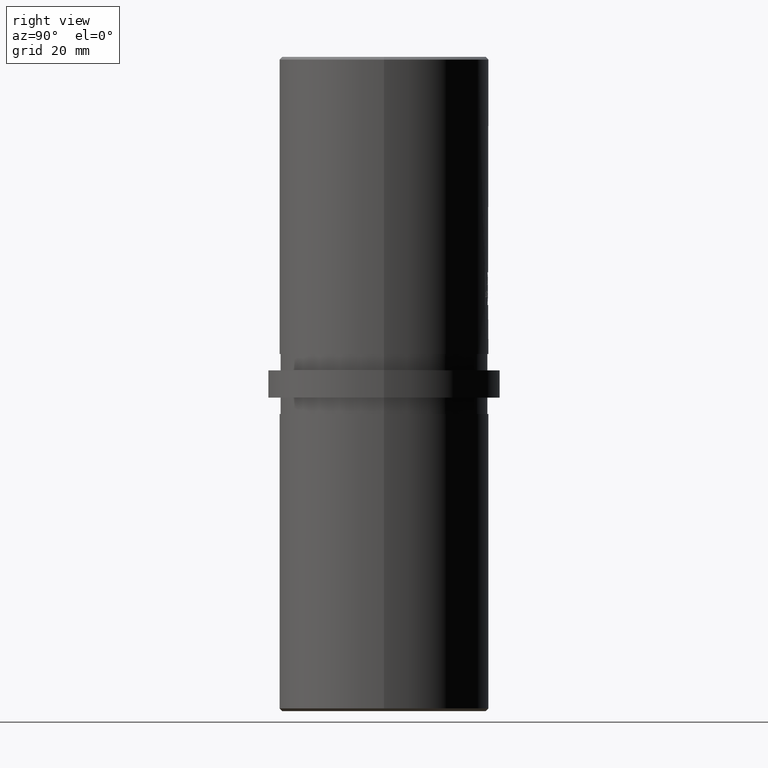
[diagram: clean part render]
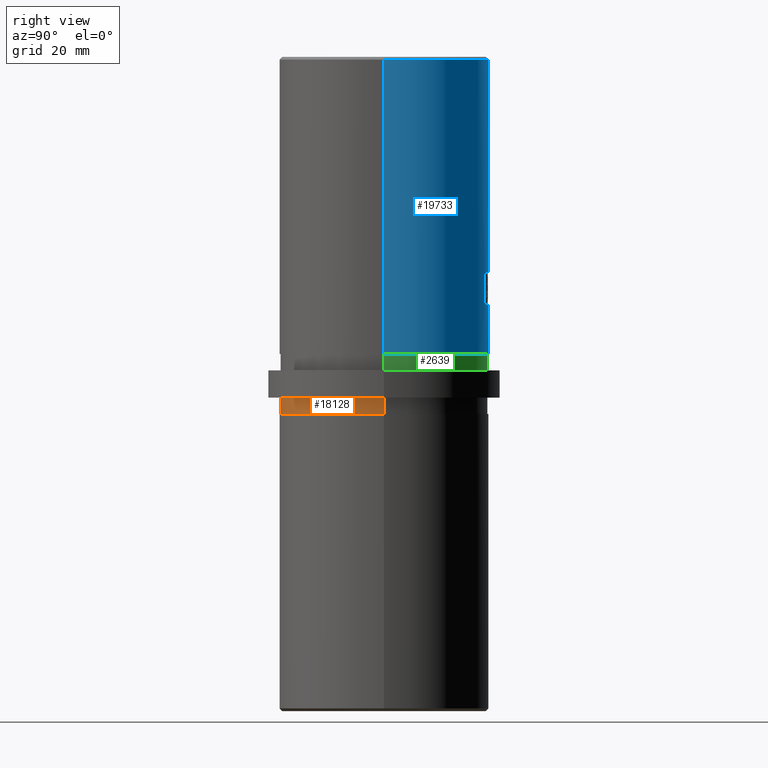
[diagram: same view with three faces highlighted in distinct colors, each labeled with its STEP entity id]
A machine part, right view with three faces highlighted in distinct colors.
Their STEP definitions:

[orange] entity #18128 — the highlighted cylindrical surface (partial cylindrical patch) has radius 18.95 mm, axis along (-0, -0, 1).
#73 = EDGE_CURVE ( 'NONE', #207, #8482, #10671, .T. ) ;
#207 = VERTEX_POINT ( 'NONE', #10498 ) ;
#409 = CYLINDRICAL_SURFACE ( 'NONE', #1289, 18.95000000000000300 ) ;
#1289 = AXIS2_PLACEMENT_3D ( 'NONE', #1702, #1924, #7005 ) ;
#1329 = CIRCLE ( 'NONE', #9310, 18.95000000000000300 ) ;
#1702 = CARTESIAN_POINT ( 'NONE',  ( 0.0000000000000000000, 0.0000000000000000000, -5.500000000000000000 ) ) ;
#1924 = DIRECTION ( 'NONE',  ( -0.0000000000000000000, -0.0000000000000000000, 1.000000000000000000 ) ) ;
#2059 = LINE ( 'NONE', #17380, #8197 ) ;
#2970 = ORIENTED_EDGE ( 'NONE', *, *, #8798, .F. ) ;
#3370 = FACE_OUTER_BOUND ( 'NONE', #4352, .T. ) ;
#3741 = CARTESIAN_POINT ( 'NONE',  ( -18.95000000000000300, 0.0000000000000000000, -5.500000000000000000 ) ) ;
#4351 = CIRCLE ( 'NONE', #15669, 18.95000000000000300 ) ;
#4352 = EDGE_LOOP ( 'NONE', ( #21058, #19171, #14791, #2970 ) ) ;
#5153 = DIRECTION ( 'NONE',  ( -0.0000000000000000000, -0.0000000000000000000, 1.000000000000000000 ) ) ;
#5449 = DIRECTION ( 'NONE',  ( -0.0000000000000000000, -0.0000000000000000000, 1.000000000000000000 ) ) ;
#6214 = CARTESIAN_POINT ( 'NONE',  ( 18.95000000000000300, -2.320705684384234700E-015, -2.500000000000000000 ) ) ;
#6791 = DIRECTION ( 'NONE',  ( 1.000000000000000000, 0.0000000000000000000, 0.0000000000000000000 ) ) ;
#7005 = DIRECTION ( 'NONE',  ( -1.000000000000000000, 0.0000000000000000000, 0.0000000000000000000 ) ) ;
#8197 = VECTOR ( 'NONE', #15596, 1000.000000000000000 ) ;
#8482 = VERTEX_POINT ( 'NONE', #6214 ) ;
#8798 = EDGE_CURVE ( 'NONE', #19097, #13993, #2059, .T. ) ;
#9310 = AXIS2_PLACEMENT_3D ( 'NONE', #13619, #5153, #6791 ) ;
#10498 = CARTESIAN_POINT ( 'NONE',  ( 18.95000000000000300, -2.320705684384234700E-015, -5.500000000000000000 ) ) ;
#10671 = LINE ( 'NONE', #18958, #17027 ) ;
#13133 = CARTESIAN_POINT ( 'NONE',  ( -18.95000000000000300, 0.0000000000000000000, -2.500000000000000000 ) ) ;
#13619 = CARTESIAN_POINT ( 'NONE',  ( 0.0000000000000000000, 0.0000000000000000000, -5.500000000000000000 ) ) ;
#13993 = VERTEX_POINT ( 'NONE', #13133 ) ;
#14433 = EDGE_CURVE ( 'NONE', #13993, #8482, #4351, .T. ) ;
#14791 = ORIENTED_EDGE ( 'NONE', *, *, #14433, .F. ) ;
#15596 = DIRECTION ( 'NONE',  ( -0.0000000000000000000, -0.0000000000000000000, 1.000000000000000000 ) ) ;
#15669 = AXIS2_PLACEMENT_3D ( 'NONE', #19866, #16673, #18365 ) ;
#16673 = DIRECTION ( 'NONE',  ( -0.0000000000000000000, -0.0000000000000000000, 1.000000000000000000 ) ) ;
#17027 = VECTOR ( 'NONE', #5449, 1000.000000000000000 ) ;
#17380 = CARTESIAN_POINT ( 'NONE',  ( -18.95000000000000300, 0.0000000000000000000, -5.500000000000000000 ) ) ;
#18128 = ADVANCED_FACE ( 'NONE', ( #3370 ), #409, .T. ) ;
#18365 = DIRECTION ( 'NONE',  ( 1.000000000000000000, 0.0000000000000000000, 0.0000000000000000000 ) ) ;
#18958 = CARTESIAN_POINT ( 'NONE',  ( 18.95000000000000300, -2.320705684384234700E-015, -5.500000000000000000 ) ) ;
#19097 = VERTEX_POINT ( 'NONE', #3741 ) ;
#19171 = ORIENTED_EDGE ( 'NONE', *, *, #73, .T. ) ;
#19847 = EDGE_CURVE ( 'NONE', #19097, #207, #1329, .T. ) ;
#19866 = CARTESIAN_POINT ( 'NONE',  ( 0.0000000000000000000, 0.0000000000000000000, -2.500000000000000000 ) ) ;
#21058 = ORIENTED_EDGE ( 'NONE', *, *, #19847, .T. ) ;

[blue] entity #19733 — the highlighted cylindrical surface (partial cylindrical patch) has radius 19.15 mm, axis along (-0, -0, -1).
#303 = VERTEX_POINT ( 'NONE', #487 ) ;
#309 = ORIENTED_EDGE ( 'NONE', *, *, #2136, .T. ) ;
#487 = CARTESIAN_POINT ( 'NONE',  ( -4.499999999999999100, 18.61377178327918000, 14.49999999999999800 ) ) ;
#760 = CARTESIAN_POINT ( 'NONE',  ( 19.15000000000000200, 2.345198620367181800E-015, 60.00000000000000000 ) ) ;
#948 = DIRECTION ( 'NONE',  ( -0.0000000000000000000, -0.0000000000000000000, -1.000000000000000000 ) ) ;
#1169 = CARTESIAN_POINT ( 'NONE',  ( -4.757837220126653200, 18.54979030130697400, 20.44781862434503600 ) ) ;
#1202 = DIRECTION ( 'NONE',  ( -3.469446951953614200E-016, 0.0000000000000000000, 1.000000000000000000 ) ) ;
#1321 = CARTESIAN_POINT ( 'NONE',  ( 19.15000000000000200, 2.345198620367181800E-015, 59.49999999999999300 ) ) ;
#1704 = EDGE_CURVE ( 'NONE', #11388, #7586, #8488, .T. ) ;
#2053 = EDGE_CURVE ( 'NONE', #19375, #4594, #14063, .T. ) ;
#2136 = EDGE_CURVE ( 'NONE', #16545, #18337, #18463, .T. ) ;
#2280 = CARTESIAN_POINT ( 'NONE',  ( 4.943769125031053600, 18.50110488792694200, 14.73525386487789000 ) ) ;
#2417 = CARTESIAN_POINT ( 'NONE',  ( 4.757837220126656800, 18.54979030130697000, 14.55218137565496900 ) ) ;
#2558 = VECTOR ( 'NONE', #19454, 1000.000000000000000 ) ;
#2904 = CARTESIAN_POINT ( 'NONE',  ( -5.000000000000265600, 18.48573774562445500, 20.13427243153623200 ) ) ;
#2930 = CARTESIAN_POINT ( 'NONE',  ( -19.15000000000000200, 0.0000000000000000000, 5.500000000000000000 ) ) ;
#3117 = CARTESIAN_POINT ( 'NONE',  ( 4.630323362391735900, 18.58226526554645700, 20.50000000000000700 ) ) ;
#3681 = DIRECTION ( 'NONE',  ( 0.0000000000000000000, 0.0000000000000000000, -1.000000000000000000 ) ) ;
#3740 = CARTESIAN_POINT ( 'NONE',  ( -4.943714205997236100, 18.50111798019252500, 14.73532335186953700 ) ) ;
#3884 = CARTESIAN_POINT ( 'NONE',  ( -4.758373441585217000, 18.54965117887661200, 14.55258610956660300 ) ) ;
#4087 = ORIENTED_EDGE ( 'NONE', *, *, #1704, .T. ) ;
#4149 = CARTESIAN_POINT ( 'NONE',  ( 5.000000000000008000, 18.48573774562433100, 60.00000000000000000 ) ) ;
#4472 = CARTESIAN_POINT ( 'NONE',  ( 4.500000000000001800, 18.61377178327918000, 20.50000000000000400 ) ) ;
#4577 = ORIENTED_EDGE ( 'NONE', *, *, #11639, .T. ) ;
#4594 = VERTEX_POINT ( 'NONE', #9413 ) ;
#4845 = EDGE_CURVE ( 'NONE', #21919, #19352, #16254, .T. ) ;
#5360 = CARTESIAN_POINT ( 'NONE',  ( -4.999999999999992000, 18.48573774562433400, 60.00000000000000000 ) ) ;
#5386 = CARTESIAN_POINT ( 'NONE',  ( -4.630323362391732400, 18.58226526554645400, 14.50000000000000400 ) ) ;
#5406 = CARTESIAN_POINT ( 'NONE',  ( -19.15000000000000200, 0.0000000000000000000, 59.49999999999999300 ) ) ;
#5606 = CARTESIAN_POINT ( 'NONE',  ( -4.999999999999992000, 18.48573774562433400, 15.00000000000000000 ) ) ;
#5717 = AXIS2_PLACEMENT_3D ( 'NONE', #8005, #1202, #18384 ) ;
#5814 = ORIENTED_EDGE ( 'NONE', *, *, #10681, .T. ) ;
#6118 = CARTESIAN_POINT ( 'NONE',  ( -4.499999999999998200, 18.61377178327918000, 20.50000000000000400 ) ) ;
#6125 = ORIENTED_EDGE ( 'NONE', *, *, #6415, .T. ) ;
#6164 = EDGE_CURVE ( 'NONE', #4594, #303, #15745, .T. ) ;
#6190 = CARTESIAN_POINT ( 'NONE',  ( 5.000000000000008000, 18.48573774562433100, 20.00000000000000400 ) ) ;
#6415 = EDGE_CURVE ( 'NONE', #8394, #19375, #11080, .T. ) ;
#6482 = CARTESIAN_POINT ( 'NONE',  ( 4.758373441585222400, 18.54965117887660900, 20.44741389043339600 ) ) ;
#6889 = CARTESIAN_POINT ( 'NONE',  ( 0.0000000000000000000, 0.0000000000000000000, 59.49999999999999300 ) ) ;
#7199 = CARTESIAN_POINT ( 'NONE',  ( -19.15000000000000200, 0.0000000000000000000, 60.00000000000000000 ) ) ;
#7322 = ORIENTED_EDGE ( 'NONE', *, *, #10909, .F. ) ;
#7496 = LINE ( 'NONE', #7199, #14922 ) ;
#7586 = VERTEX_POINT ( 'NONE', #2930 ) ;
#7813 = CARTESIAN_POINT ( 'NONE',  ( -4.943769125031049100, 18.50110488792694600, 20.26474613512211300 ) ) ;
#7960 = EDGE_CURVE ( 'NONE', #19352, #11388, #10618, .T. ) ;
#8005 = CARTESIAN_POINT ( 'NONE',  ( 0.0000000000000000000, 0.0000000000000000000, 20.50000000000000400 ) ) ;
#8132 = ORIENTED_EDGE ( 'NONE', *, *, #20168, .F. ) ;
#8215 = DIRECTION ( 'NONE',  ( 1.000000000000000000, 0.0000000000000000000, 0.0000000000000000000 ) ) ;
#8333 = AXIS2_PLACEMENT_3D ( 'NONE', #19342, #948, #16682 ) ;
#8394 = VERTEX_POINT ( 'NONE', #19712 ) ;
#8488 = CIRCLE ( 'NONE', #20231, 19.15000000000000200 ) ;
#8536 = CIRCLE ( 'NONE', #5717, 19.15000000000000200 ) ;
#8865 = CARTESIAN_POINT ( 'NONE',  ( -4.499999999999999100, 18.61377178327918000, 14.49999999999999800 ) ) ;
#8907 = EDGE_CURVE ( 'NONE', #20950, #18337, #16116, .T. ) ;
#9049 = DIRECTION ( 'NONE',  ( -0.0000000000000000000, -0.0000000000000000000, -1.000000000000000000 ) ) ;
#9325 = ORIENTED_EDGE ( 'NONE', *, *, #7960, .T. ) ;
#9413 = CARTESIAN_POINT ( 'NONE',  ( -4.999999999999992000, 18.48573774562433400, 15.00000000000000000 ) ) ;
#9550 = VECTOR ( 'NONE', #9049, 1000.000000000000000 ) ;
#9914 = ORIENTED_EDGE ( 'NONE', *, *, #8907, .F. ) ;
#10110 = CARTESIAN_POINT ( 'NONE',  ( 5.000000000000002700, 18.48573774562433100, 20.13419147117471700 ) ) ;
#10188 = CARTESIAN_POINT ( 'NONE',  ( 5.000000000000008000, 18.48573774562433100, 20.00000000000000400 ) ) ;
#10618 = LINE ( 'NONE', #760, #20179 ) ;
#10681 = EDGE_CURVE ( 'NONE', #20950, #20748, #12608, .T. ) ;
#10909 = EDGE_CURVE ( 'NONE', #21919, #7586, #7496, .T. ) ;
#11080 = B_SPLINE_CURVE_WITH_KNOTS ( 'NONE', 3,
 ( #6118, #16512, #1169, #7813, #2904, #19778 ),
 .UNSPECIFIED., .F., .F.,
 ( 4, 2, 4 ),
 ( 8.673617379884035500E-019, 0.0003967751096775143400, 0.0007935502193550278100 ),
 .UNSPECIFIED. ) ;
#11120 = DIRECTION ( 'NONE',  ( -0.0000000000000000000, -0.0000000000000000000, -1.000000000000000000 ) ) ;
#11210 = EDGE_LOOP ( 'NONE', ( #9914, #5814, #4577, #6125, #18049, #15390, #8132, #309 ) ) ;
#11388 = VERTEX_POINT ( 'NONE', #12188 ) ;
#11639 = EDGE_CURVE ( 'NONE', #20748, #8394, #8536, .T. ) ;
#11822 = CARTESIAN_POINT ( 'NONE',  ( 4.500000000000001800, 18.61377178327918000, 20.50000000000000400 ) ) ;
#11892 = CARTESIAN_POINT ( 'NONE',  ( 4.943714205997238800, 18.50111798019252500, 20.26467664813046800 ) ) ;
#12188 = CARTESIAN_POINT ( 'NONE',  ( 19.15000000000000200, 2.345198620367181800E-015, 5.500000000000000000 ) ) ;
#12608 = B_SPLINE_CURVE_WITH_KNOTS ( 'NONE', 3,
 ( #10188, #10110, #11892, #6482, #3117, #11822 ),
 .UNSPECIFIED., .F., .F.,
 ( 4, 2, 4 ),
 ( 0.0000000000000000000, 0.0003967691644226426500, 0.0007935383288452853000 ),
 .UNSPECIFIED. ) ;
#12825 = DIRECTION ( 'NONE',  ( 1.000000000000000000, 0.0000000000000000000, 0.0000000000000000000 ) ) ;
#12911 = CARTESIAN_POINT ( 'NONE',  ( 5.000000000000008000, 18.48573774562433100, 15.00000000000000000 ) ) ;
#13232 = CARTESIAN_POINT ( 'NONE',  ( -4.999999999999992000, 18.48573774562433400, 20.00000000000000400 ) ) ;
#13317 = CYLINDRICAL_SURFACE ( 'NONE', #8333, 19.15000000000000200 ) ;
#13852 = FACE_BOUND ( 'NONE', #11210, .T. ) ;
#14063 = LINE ( 'NONE', #5360, #9550 ) ;
#14922 = VECTOR ( 'NONE', #20861, 1000.000000000000000 ) ;
#15390 = ORIENTED_EDGE ( 'NONE', *, *, #6164, .T. ) ;
#15745 = B_SPLINE_CURVE_WITH_KNOTS ( 'NONE', 3,
 ( #5606, #19245, #3740, #3884, #5386, #8865 ),
 .UNSPECIFIED., .F., .F.,
 ( 4, 2, 4 ),
 ( 3.576224061345498000E-018, 0.0003967691644226442200, 0.0007935383288452848700 ),
 .UNSPECIFIED. ) ;
#15944 = CARTESIAN_POINT ( 'NONE',  ( 5.000000000000268200, 18.48573774562445500, 14.86572756846377400 ) ) ;
#16023 = CARTESIAN_POINT ( 'NONE',  ( 4.630394566729751000, 18.58224805143612500, 14.50000000000000000 ) ) ;
#16116 = LINE ( 'NONE', #4149, #2558 ) ;
#16228 = DIRECTION ( 'NONE',  ( -0.0000000000000000000, 0.0000000000000000000, 1.000000000000000000 ) ) ;
#16254 = CIRCLE ( 'NONE', #21411, 19.15000000000000200 ) ;
#16512 = CARTESIAN_POINT ( 'NONE',  ( -4.630394566729748400, 18.58224805143612800, 20.50000000000000000 ) ) ;
#16545 = VERTEX_POINT ( 'NONE', #17914 ) ;
#16682 = DIRECTION ( 'NONE',  ( -1.000000000000000000, 0.0000000000000000000, 0.0000000000000000000 ) ) ;
#16686 = DIRECTION ( 'NONE',  ( 0.0000000000000000000, 0.0000000000000000000, 1.000000000000000000 ) ) ;
#17001 = EDGE_LOOP ( 'NONE', ( #18855, #9325, #4087, #7322 ) ) ;
#17049 = DIRECTION ( 'NONE',  ( 1.000000000000000000, 0.0000000000000000000, 0.0000000000000000000 ) ) ;
#17792 = CARTESIAN_POINT ( 'NONE',  ( 5.000000000000008000, 18.48573774562433100, 15.00000000000000000 ) ) ;
#17914 = CARTESIAN_POINT ( 'NONE',  ( 4.500000000000000900, 18.61377178327918000, 14.49999999999999800 ) ) ;
#18049 = ORIENTED_EDGE ( 'NONE', *, *, #2053, .T. ) ;
#18337 = VERTEX_POINT ( 'NONE', #12911 ) ;
#18377 = CARTESIAN_POINT ( 'NONE',  ( 0.0000000000000000000, 0.0000000000000000000, 5.500000000000000000 ) ) ;
#18384 = DIRECTION ( 'NONE',  ( 1.000000000000000000, 0.0000000000000000000, 3.623443291857560100E-016 ) ) ;
#18463 = B_SPLINE_CURVE_WITH_KNOTS ( 'NONE', 3,
 ( #20944, #16023, #2417, #2280, #15944, #17792 ),
 .UNSPECIFIED., .F., .F.,
 ( 4, 2, 4 ),
 ( 0.0000000000000000000, 0.0003967751096775162900, 0.0007935502193550325800 ),
 .UNSPECIFIED. ) ;
#18855 = ORIENTED_EDGE ( 'NONE', *, *, #4845, .T. ) ;
#19245 = CARTESIAN_POINT ( 'NONE',  ( -4.999999999999999100, 18.48573774562433400, 14.86580852882528500 ) ) ;
#19268 = AXIS2_PLACEMENT_3D ( 'NONE', #19738, #16228, #12825 ) ;
#19342 = CARTESIAN_POINT ( 'NONE',  ( 0.0000000000000000000, 0.0000000000000000000, 60.00000000000000000 ) ) ;
#19352 = VERTEX_POINT ( 'NONE', #1321 ) ;
#19375 = VERTEX_POINT ( 'NONE', #13232 ) ;
#19454 = DIRECTION ( 'NONE',  ( -0.0000000000000000000, -0.0000000000000000000, -1.000000000000000000 ) ) ;
#19712 = CARTESIAN_POINT ( 'NONE',  ( -4.499999999999998200, 18.61377178327918000, 20.50000000000000400 ) ) ;
#19733 = ADVANCED_FACE ( 'NONE', ( #13852, #19970 ), #13317, .T. ) ;
#19738 = CARTESIAN_POINT ( 'NONE',  ( 0.0000000000000000000, 0.0000000000000000000, 14.49999999999999800 ) ) ;
#19778 = CARTESIAN_POINT ( 'NONE',  ( -4.999999999999992000, 18.48573774562433400, 20.00000000000000400 ) ) ;
#19970 = FACE_OUTER_BOUND ( 'NONE', #17001, .T. ) ;
#20168 = EDGE_CURVE ( 'NONE', #16545, #303, #20763, .T. ) ;
#20179 = VECTOR ( 'NONE', #11120, 1000.000000000000000 ) ;
#20231 = AXIS2_PLACEMENT_3D ( 'NONE', #18377, #16686, #8215 ) ;
#20748 = VERTEX_POINT ( 'NONE', #4472 ) ;
#20763 = CIRCLE ( 'NONE', #19268, 19.15000000000000200 ) ;
#20861 = DIRECTION ( 'NONE',  ( -0.0000000000000000000, -0.0000000000000000000, -1.000000000000000000 ) ) ;
#20944 = CARTESIAN_POINT ( 'NONE',  ( 4.500000000000000900, 18.61377178327918000, 14.49999999999999800 ) ) ;
#20950 = VERTEX_POINT ( 'NONE', #6190 ) ;
#21411 = AXIS2_PLACEMENT_3D ( 'NONE', #6889, #3681, #17049 ) ;
#21919 = VERTEX_POINT ( 'NONE', #5406 ) ;

[green] entity #2639 — the highlighted cylindrical surface (partial cylindrical patch) has radius 18.95 mm, axis along (-0, -0, -1).
#10 = DIRECTION ( 'NONE',  ( -0.0000000000000000000, -0.0000000000000000000, -1.000000000000000000 ) ) ;
#1004 = EDGE_CURVE ( 'NONE', #14638, #19026, #15925, .T. ) ;
#1433 = CARTESIAN_POINT ( 'NONE',  ( 0.0000000000000000000, 0.0000000000000000000, 5.500000000000000000 ) ) ;
#2639 = ADVANCED_FACE ( 'NONE', ( #7150 ), #13262, .T. ) ;
#3111 = DIRECTION ( 'NONE',  ( -1.000000000000000000, 0.0000000000000000000, 0.0000000000000000000 ) ) ;
#3183 = DIRECTION ( 'NONE',  ( -0.0000000000000000000, -0.0000000000000000000, -1.000000000000000000 ) ) ;
#3313 = CARTESIAN_POINT ( 'NONE',  ( 18.95000000000000300, 2.320705684384234700E-015, 5.500000000000000000 ) ) ;
#3729 = AXIS2_PLACEMENT_3D ( 'NONE', #6875, #13555, #10300 ) ;
#4241 = LINE ( 'NONE', #10303, #18332 ) ;
#4751 = CARTESIAN_POINT ( 'NONE',  ( 0.0000000000000000000, 0.0000000000000000000, 5.500000000000000000 ) ) ;
#4833 = VERTEX_POINT ( 'NONE', #5181 ) ;
#5181 = CARTESIAN_POINT ( 'NONE',  ( -18.95000000000000300, 0.0000000000000000000, 2.500000000000000000 ) ) ;
#5801 = ORIENTED_EDGE ( 'NONE', *, *, #1004, .F. ) ;
#6572 = AXIS2_PLACEMENT_3D ( 'NONE', #4751, #3183, #3111 ) ;
#6875 = CARTESIAN_POINT ( 'NONE',  ( 0.0000000000000000000, 0.0000000000000000000, 2.500000000000000000 ) ) ;
#7150 = FACE_OUTER_BOUND ( 'NONE', #21943, .T. ) ;
#7634 = CIRCLE ( 'NONE', #3729, 18.95000000000000300 ) ;
#8507 = DIRECTION ( 'NONE',  ( -0.0000000000000000000, -0.0000000000000000000, -1.000000000000000000 ) ) ;
#8923 = VECTOR ( 'NONE', #10, 1000.000000000000000 ) ;
#9729 = ORIENTED_EDGE ( 'NONE', *, *, #18993, .T. ) ;
#10285 = LINE ( 'NONE', #3313, #8923 ) ;
#10300 = DIRECTION ( 'NONE',  ( 1.000000000000000000, 0.0000000000000000000, 0.0000000000000000000 ) ) ;
#10303 = CARTESIAN_POINT ( 'NONE',  ( -18.95000000000000300, 0.0000000000000000000, 5.500000000000000000 ) ) ;
#13262 = CYLINDRICAL_SURFACE ( 'NONE', #6572, 18.95000000000000300 ) ;
#13268 = DIRECTION ( 'NONE',  ( 1.000000000000000000, 0.0000000000000000000, 0.0000000000000000000 ) ) ;
#13555 = DIRECTION ( 'NONE',  ( 0.0000000000000000000, 0.0000000000000000000, 1.000000000000000000 ) ) ;
#13639 = CARTESIAN_POINT ( 'NONE',  ( -18.95000000000000300, 0.0000000000000000000, 5.500000000000000000 ) ) ;
#14638 = VERTEX_POINT ( 'NONE', #15602 ) ;
#14893 = DIRECTION ( 'NONE',  ( 0.0000000000000000000, 0.0000000000000000000, 1.000000000000000000 ) ) ;
#15602 = CARTESIAN_POINT ( 'NONE',  ( 18.95000000000000300, 2.320705684384234700E-015, 5.500000000000000000 ) ) ;
#15925 = CIRCLE ( 'NONE', #20781, 18.95000000000000300 ) ;
#16188 = CARTESIAN_POINT ( 'NONE',  ( 18.95000000000000300, 2.320705684384234700E-015, 2.500000000000000000 ) ) ;
#16630 = EDGE_CURVE ( 'NONE', #17885, #4833, #7634, .T. ) ;
#17535 = ORIENTED_EDGE ( 'NONE', *, *, #20418, .F. ) ;
#17885 = VERTEX_POINT ( 'NONE', #16188 ) ;
#18332 = VECTOR ( 'NONE', #8507, 1000.000000000000000 ) ;
#18993 = EDGE_CURVE ( 'NONE', #14638, #17885, #10285, .T. ) ;
#19026 = VERTEX_POINT ( 'NONE', #13639 ) ;
#20418 = EDGE_CURVE ( 'NONE', #19026, #4833, #4241, .T. ) ;
#20781 = AXIS2_PLACEMENT_3D ( 'NONE', #1433, #14893, #13268 ) ;
#20897 = ORIENTED_EDGE ( 'NONE', *, *, #16630, .T. ) ;
#21943 = EDGE_LOOP ( 'NONE', ( #5801, #9729, #20897, #17535 ) ) ;